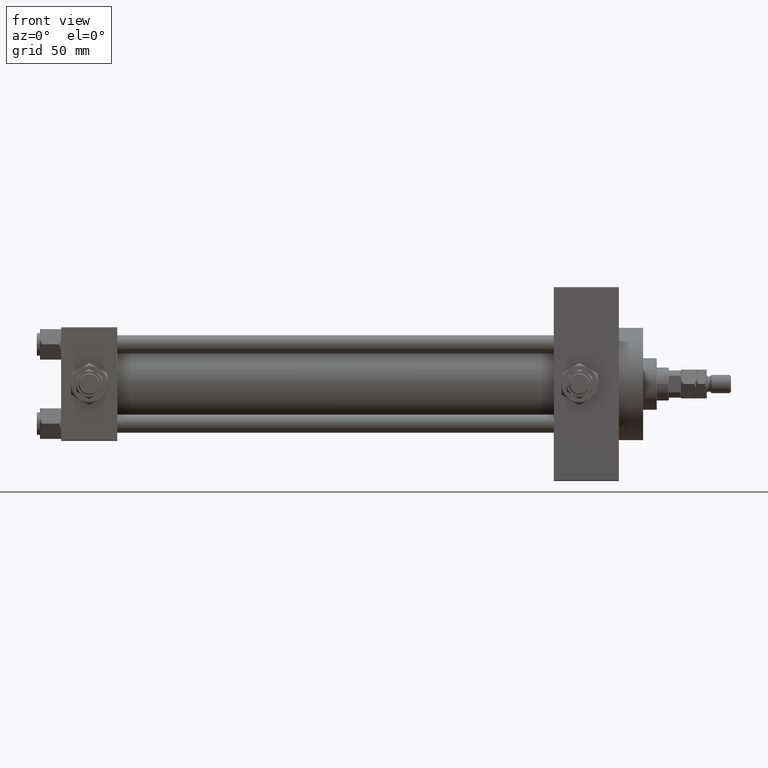
[diagram: clean part render]
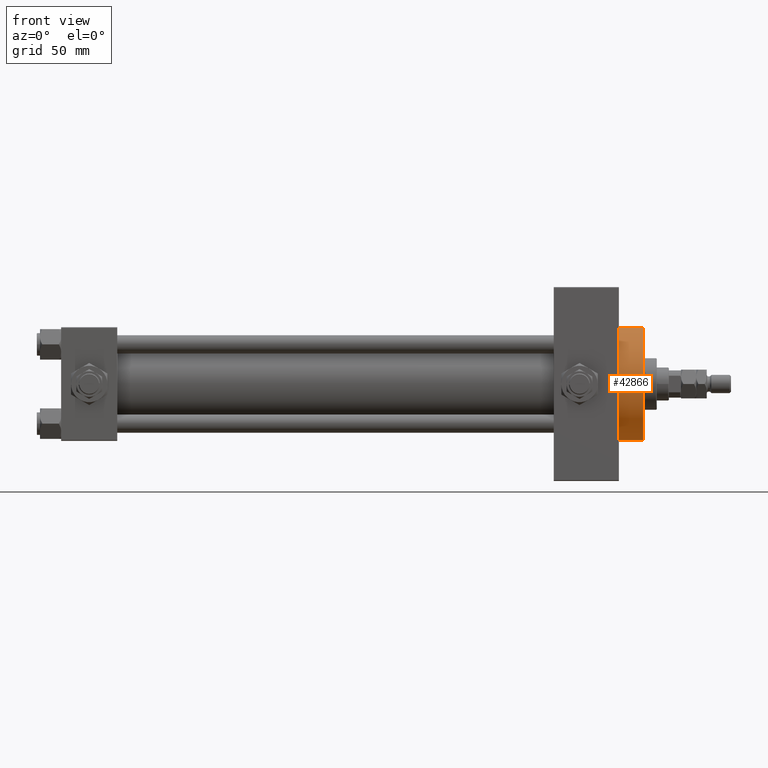
[diagram: same view with one face highlighted and labeled with its STEP entity id]
A machine part, front view. The second image highlights one B-rep face of the part: STEP entity #42866.
In plain terms, the highlighted cylindrical surface (partial cylindrical patch) has radius 37 mm, axis along (-1, -0, -0).
Its self-contained STEP definition (entity closure, byte-faithful):
#1025 = ORIENTED_EDGE ( 'NONE', *, *, #25353, .T. ) ;
#1347 = CARTESIAN_POINT ( 'NONE',  ( 383.9999999999999432, 4.531193156845206793E-15, -37.00000000000000000 ) ) ;
#3540 = DIRECTION ( 'NONE',  ( -1.000000000000000000, -0.000000000000000000, -0.000000000000000000 ) ) ;
#4822 = AXIS2_PLACEMENT_3D ( 'NONE', #10573, #34746, #46833 ) ;
#6040 = VERTEX_POINT ( 'NONE', #24469 ) ;
#8140 = VECTOR ( 'NONE', #19601, 1000.000000000000000 ) ;
#10450 = CARTESIAN_POINT ( 'NONE',  ( 383.9999999999999432, 0.000000000000000000, 37.00000000000000000 ) ) ;
#10573 = CARTESIAN_POINT ( 'NONE',  ( 367.9999999999999432, 0.000000000000000000, 0.000000000000000000 ) ) ;
#10724 = DIRECTION ( 'NONE',  ( 0.000000000000000000, 0.000000000000000000, 1.000000000000000000 ) ) ;
#10916 = AXIS2_PLACEMENT_3D ( 'NONE', #36463, #25122, #32596 ) ;
#12808 = CARTESIAN_POINT ( 'NONE',  ( 383.9999999999999432, 0.000000000000000000, 37.00000000000000000 ) ) ;
#14018 = CARTESIAN_POINT ( 'NONE',  ( 367.9999999999999432, 4.531193156845206793E-15, -37.00000000000000000 ) ) ;
#15735 = LINE ( 'NONE', #38898, #8140 ) ;
#15795 = VERTEX_POINT ( 'NONE', #12808 ) ;
#19601 = DIRECTION ( 'NONE',  ( -1.000000000000000000, -0.000000000000000000, -0.000000000000000000 ) ) ;
#22543 = FACE_OUTER_BOUND ( 'NONE', #48798, .T. ) ;
#23285 = EDGE_CURVE ( 'NONE', #40067, #28889, #15735, .T. ) ;
#23301 = DIRECTION ( 'NONE',  ( -1.000000000000000000, -0.000000000000000000, -0.000000000000000000 ) ) ;
#24025 = EDGE_CURVE ( 'NONE', #6040, #28889, #36044, .T. ) ;
#24469 = CARTESIAN_POINT ( 'NONE',  ( 367.9999999999999432, 0.000000000000000000, 37.00000000000000000 ) ) ;
#25122 = DIRECTION ( 'NONE',  ( 1.000000000000000000, 0.000000000000000000, 0.000000000000000000 ) ) ;
#25353 = EDGE_CURVE ( 'NONE', #15795, #6040, #46195, .T. ) ;
#27432 = CARTESIAN_POINT ( 'NONE',  ( 383.9999999999999432, 0.000000000000000000, 0.000000000000000000 ) ) ;
#28889 = VERTEX_POINT ( 'NONE', #14018 ) ;
#29858 = AXIS2_PLACEMENT_3D ( 'NONE', #27432, #3540, #10724 ) ;
#30531 = CYLINDRICAL_SURFACE ( 'NONE', #29858, 37.00000000000000000 ) ;
#32596 = DIRECTION ( 'NONE',  ( 0.000000000000000000, 0.000000000000000000, -1.000000000000000000 ) ) ;
#33616 = VECTOR ( 'NONE', #23301, 1000.000000000000000 ) ;
#34746 = DIRECTION ( 'NONE',  ( 1.000000000000000000, 0.000000000000000000, 0.000000000000000000 ) ) ;
#36044 = CIRCLE ( 'NONE', #4822, 37.00000000000000000 ) ;
#36463 = CARTESIAN_POINT ( 'NONE',  ( 383.9999999999999432, 0.000000000000000000, 0.000000000000000000 ) ) ;
#36867 = EDGE_CURVE ( 'NONE', #15795, #40067, #45388, .T. ) ;
#38898 = CARTESIAN_POINT ( 'NONE',  ( 383.9999999999999432, 4.531193156845206793E-15, -37.00000000000000000 ) ) ;
#40067 = VERTEX_POINT ( 'NONE', #1347 ) ;
#42866 = ADVANCED_FACE ( 'NONE', ( #22543 ), #30531, .T. ) ;
#43731 = ORIENTED_EDGE ( 'NONE', *, *, #24025, .T. ) ;
#45388 = CIRCLE ( 'NONE', #10916, 37.00000000000000000 ) ;
#45785 = ORIENTED_EDGE ( 'NONE', *, *, #23285, .F. ) ;
#46195 = LINE ( 'NONE', #10450, #33616 ) ;
#46833 = DIRECTION ( 'NONE',  ( 0.000000000000000000, 0.000000000000000000, -1.000000000000000000 ) ) ;
#48798 = EDGE_LOOP ( 'NONE', ( #45785, #49275, #1025, #43731 ) ) ;
#49275 = ORIENTED_EDGE ( 'NONE', *, *, #36867, .F. ) ;